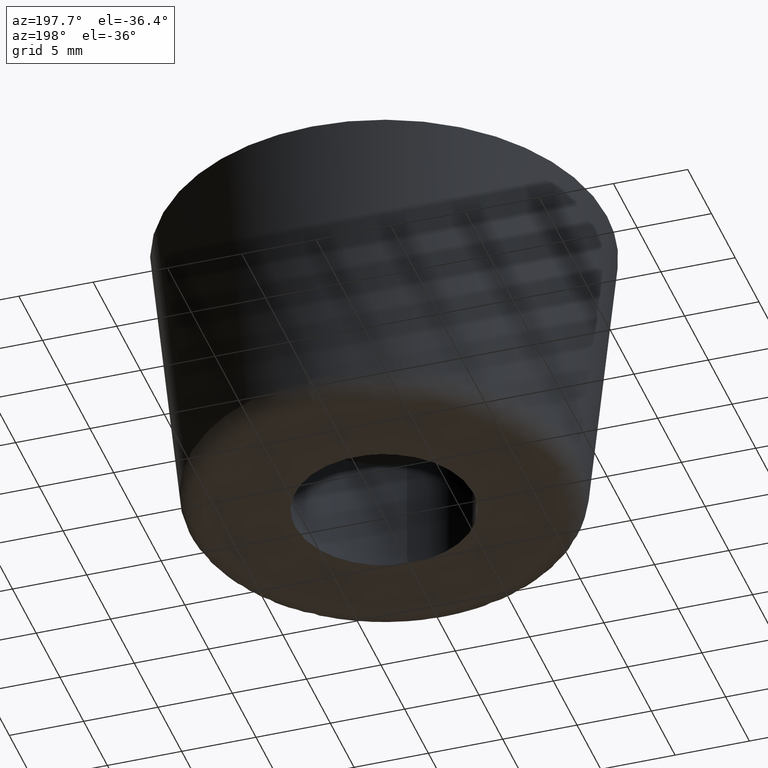
[diagram: clean part render]
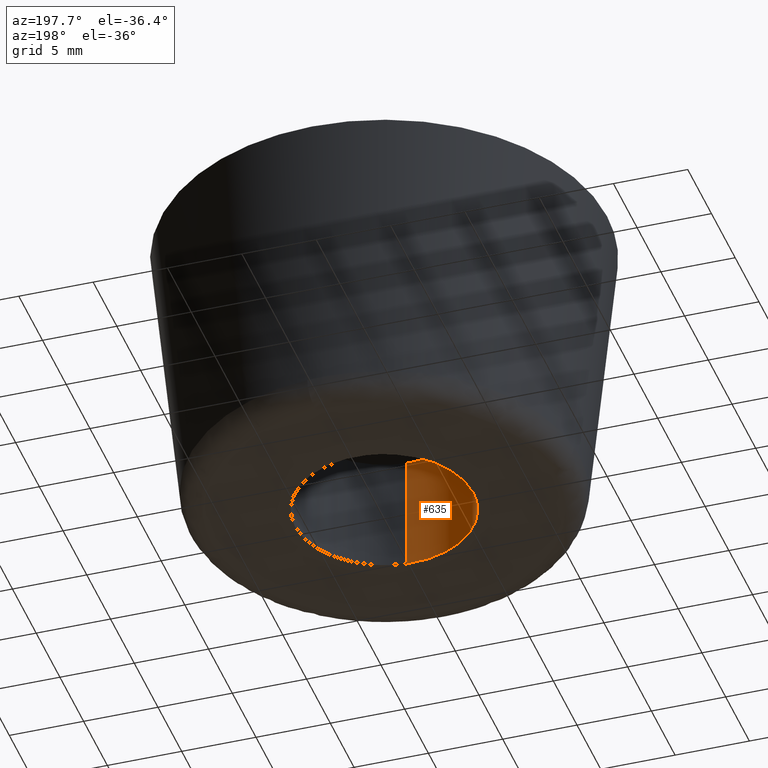
[diagram: same view with one face highlighted and labeled with its STEP entity id]
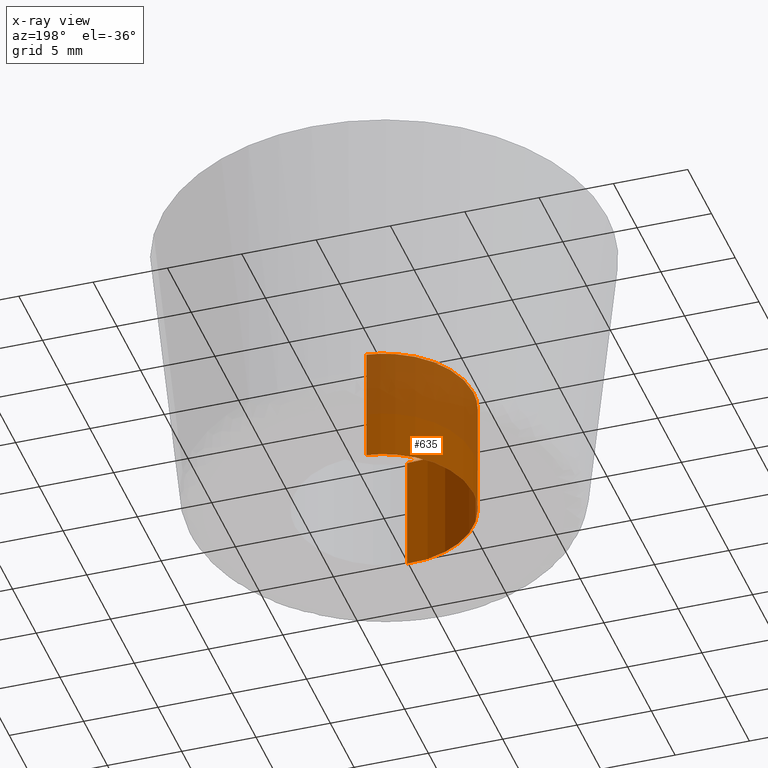
[diagram: x-ray of the same camera — body ghosted, the highlighted face saturated]
A machine part, auxiliary view. The second image highlights one B-rep face of the part: STEP entity #635.
The next image is the same camera in x-ray: the body ghosted, the highlighted face saturated — about 40% of this face is hidden behind the body in this view.
In plain terms, the highlighted face is a freeform B-spline surface patch.
Its self-contained STEP definition (entity closure, byte-faithful):
#468=CARTESIAN_POINT('',(-0.708194922177014,5.958058404555227,1.448108E-015));
#469=VERTEX_POINT('',#468);
#487=CARTESIAN_POINT('',(0.366289338826585,-5.988808906640648,3.788636E-015));
#488=VERTEX_POINT('',#487);
#502=CARTESIAN_POINT('',(0.366289362214313,-5.988808905210208,8.0));
#503=VERTEX_POINT('',#502);
#504=CARTESIAN_POINT('',(0.366289362214313,-5.988808905210208,8.0));
#505=CARTESIAN_POINT('',(0.366289338826585,-5.988808906640648,3.788636E-015));
#506=QUASI_UNIFORM_CURVE('',1,(#504,#505),.UNSPECIFIED.,.F.,.U.);
#507=EDGE_CURVE('',#503,#488,#506,.T.);
#524=CARTESIAN_POINT('',(-0.708195051552524,5.958058389177445,8.0));
#525=VERTEX_POINT('',#524);
#541=CARTESIAN_POINT('',(-0.708195051552524,5.958058389177445,8.0));
#542=CARTESIAN_POINT('',(-0.708194922177014,5.958058404555227,1.448108E-015));
#543=QUASI_UNIFORM_CURVE('',1,(#541,#542),.UNSPECIFIED.,.F.,.U.);
#544=EDGE_CURVE('',#525,#469,#543,.T.);
#549=CARTESIAN_POINT('',(0.448816315883788,-5.983761340491331,8.199999999999996));
#550=CARTESIAN_POINT('',(0.407671873033278,-5.986277842420705,8.200000000000001));
#551=CARTESIAN_POINT('',(-5.622517553322059,-6.355100027740342,8.199999999999999));
#552=CARTESIAN_POINT('',(-5.988808790531200,-0.366291237209142,8.199999999999999));
#553=CARTESIAN_POINT('',(-6.334717180395164,5.289260945037006,8.199999999999999));
#554=CARTESIAN_POINT('',(-0.666076644850181,5.963064800280476,8.200000000000001));
#555=CARTESIAN_POINT('',(-0.624174307728721,5.968045528220290,8.200000000000001));
#556=CARTESIAN_POINT('',(0.448816315883788,-5.983761340491331,-0.205000000000000));
#557=CARTESIAN_POINT('',(0.407671873033278,-5.986277842420705,-0.205000000000000));
#558=CARTESIAN_POINT('',(-5.622517553322059,-6.355100027740342,-0.205000000000000));
#559=CARTESIAN_POINT('',(-5.988808790531200,-0.366291237209142,-0.205000000000000));
#560=CARTESIAN_POINT('',(-6.334717180395164,5.289260945037006,-0.205000000000000));
#561=CARTESIAN_POINT('',(-0.666076644850181,5.963064800280476,-0.205000000000000));
#562=CARTESIAN_POINT('',(-0.624174307728721,5.968045528220290,-0.205000000000000));
#570=(BOUNDED_SURFACE()B_SPLINE_SURFACE(2,1,((#549,#556),(#550,#557),(#551,#558),(#552,#559),(#553,#560),(#554,#561),(#555,#562)),.UNSPECIFIED.,.F.,.F.,.U.)B_SPLINE_SURFACE_WITH_KNOTS((3,1,2,1,3),(2,2),(0.0,0.097420876355919,10.038546373310201,19.582026850386310,19.679462020572409),(0.0,8.405000000000001),.UNSPECIFIED.)GEOMETRIC_REPRESENTATION_ITEM()RATIONAL_B_SPLINE_SURFACE(((1.005740580191701,1.005740580191701),(1.002870290095850,1.002870290095850),(0.707106781186548,0.707106781186548),(1.0,1.0),(0.718822509939086,0.718822509939086),(0.980146855128439,0.980146855128439),(0.982787909461751,0.982787909461751)))REPRESENTATION_ITEM('')SURFACE());
#571=CARTESIAN_POINT('',(-6.0,0.0,0.0));
#572=VERTEX_POINT('',#571);
#573=CARTESIAN_POINT('',(-6.0,0.0,0.0));
#574=CARTESIAN_POINT('',(-6.000000000000002,5.329056600487015,0.0));
#575=CARTESIAN_POINT('',(-0.708194922177014,5.958058404555227,1.448108E-015));
#583=(BOUNDED_CURVE()B_SPLINE_CURVE(2,(#573,#574,#575),.UNSPECIFIED.,.F.,.U.)B_SPLINE_CURVE_WITH_KNOTS((3,3),(0.0,0.229562770949563),.UNSPECIFIED.)CURVE()GEOMETRIC_REPRESENTATION_ITEM()RATIONAL_B_SPLINE_CURVE((1.0,0.731050484387389,0.956027337171368))REPRESENTATION_ITEM(''));
#584=EDGE_CURVE('',#572,#469,#583,.T.);
#585=ORIENTED_EDGE('',*,*,#584,.T.);
#586=ORIENTED_EDGE('',*,*,#544,.F.);
#587=CARTESIAN_POINT('',(-6.0,0.0,8.0));
#588=VERTEX_POINT('',#587);
#589=CARTESIAN_POINT('',(-6.0,0.0,8.0));
#590=CARTESIAN_POINT('',(-6.000000000000001,5.329056483955323,8.0));
#591=CARTESIAN_POINT('',(-0.708195051552524,5.958058389177445,8.000000000000002));
#599=(BOUNDED_CURVE()B_SPLINE_CURVE(2,(#589,#590,#591),.UNSPECIFIED.,.F.,.U.)B_SPLINE_CURVE_WITH_KNOTS((3,3),(0.0,0.229562767279762),.UNSPECIFIED.)CURVE()GEOMETRIC_REPRESENTATION_ITEM()RATIONAL_B_SPLINE_CURVE((1.0,0.731050488686828,0.956027329978387))REPRESENTATION_ITEM(''));
#600=EDGE_CURVE('',#588,#525,#599,.T.);
#601=ORIENTED_EDGE('',*,*,#600,.F.);
#602=CARTESIAN_POINT('',(0.366289362214313,-5.988808905210209,8.0));
#603=CARTESIAN_POINT('',(0.183315639665489,-6.0,8.0));
#604=CARTESIAN_POINT('',(0.0,-6.0,8.0));
#605=CARTESIAN_POINT('',(-6.0,-6.0,8.0));
#606=CARTESIAN_POINT('',(-6.0,0.0,8.0));
#614=(BOUNDED_CURVE()B_SPLINE_CURVE(2,(#602,#603,#604,#605,#606),.UNSPECIFIED.,.F.,.U.)B_SPLINE_CURVE_WITH_KNOTS((3,2,3),(0.739333016263455,0.750000000000000,1.0),.UNSPECIFIED.)CURVE()GEOMETRIC_REPRESENTATION_ITEM()RATIONAL_B_SPLINE_CURVE((0.976072157451558,0.987502851193490,1.0,0.707106781186548,1.0))REPRESENTATION_ITEM(''));
#615=EDGE_CURVE('',#503,#588,#614,.T.);
#616=ORIENTED_EDGE('',*,*,#615,.F.);
#617=ORIENTED_EDGE('',*,*,#507,.T.);
#618=CARTESIAN_POINT('',(0.366289338826585,-5.988808906640647,3.788636E-015));
#619=CARTESIAN_POINT('',(0.183315627938838,-6.0,0.0));
#620=CARTESIAN_POINT('',(0.0,-6.0,0.0));
#621=CARTESIAN_POINT('',(-6.0,-6.0,0.0));
#622=CARTESIAN_POINT('',(-6.0,0.0,0.0));
#630=(BOUNDED_CURVE()B_SPLINE_CURVE(2,(#618,#619,#620,#621,#622),.UNSPECIFIED.,.F.,.U.)B_SPLINE_CURVE_WITH_KNOTS((3,2,3),(0.739333016937291,0.750000000000000,1.0),.UNSPECIFIED.)CURVE()GEOMETRIC_REPRESENTATION_ITEM()RATIONAL_B_SPLINE_CURVE((0.976072158895718,0.987502851982938,1.0,0.707106781186548,1.0))REPRESENTATION_ITEM(''));
#631=EDGE_CURVE('',#488,#572,#630,.T.);
#632=ORIENTED_EDGE('',*,*,#631,.T.);
#633=EDGE_LOOP('',(#585,#586,#601,#616,#617,#632));
#634=FACE_OUTER_BOUND('',#633,.T.);
#635=ADVANCED_FACE('',(#634),#570,.F.);